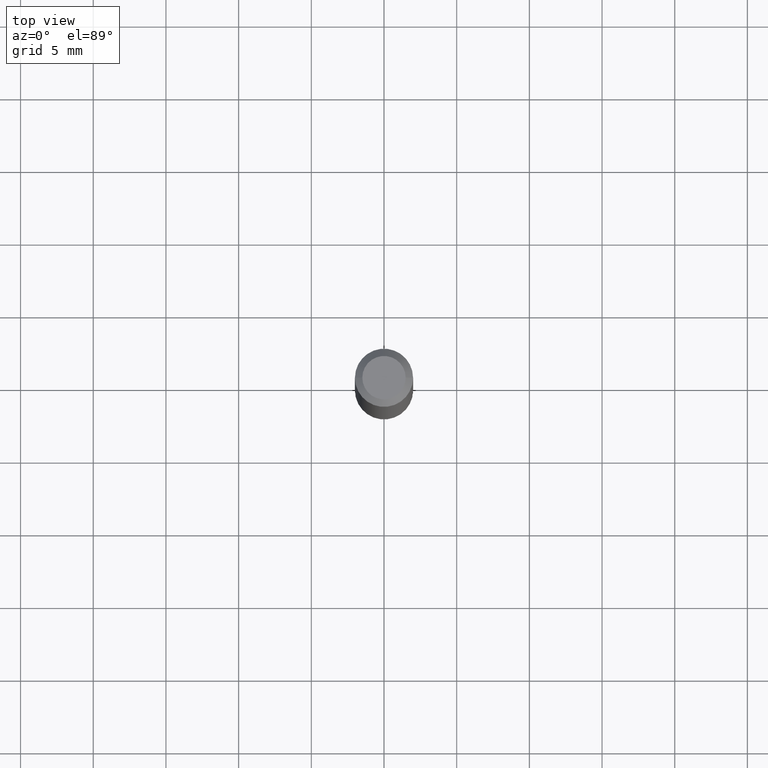
[diagram: clean part render]
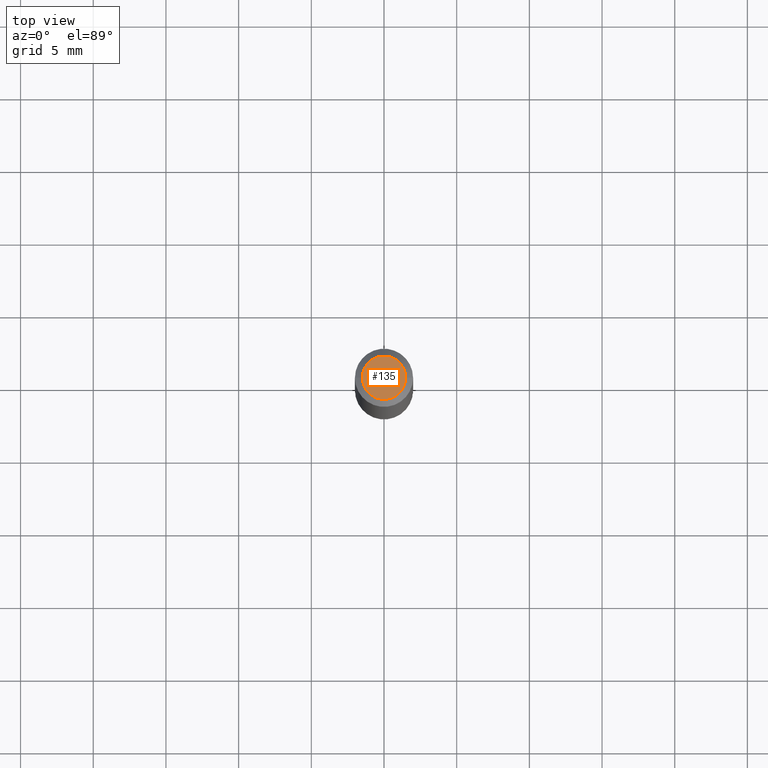
[diagram: same view with one face highlighted and labeled with its STEP entity id]
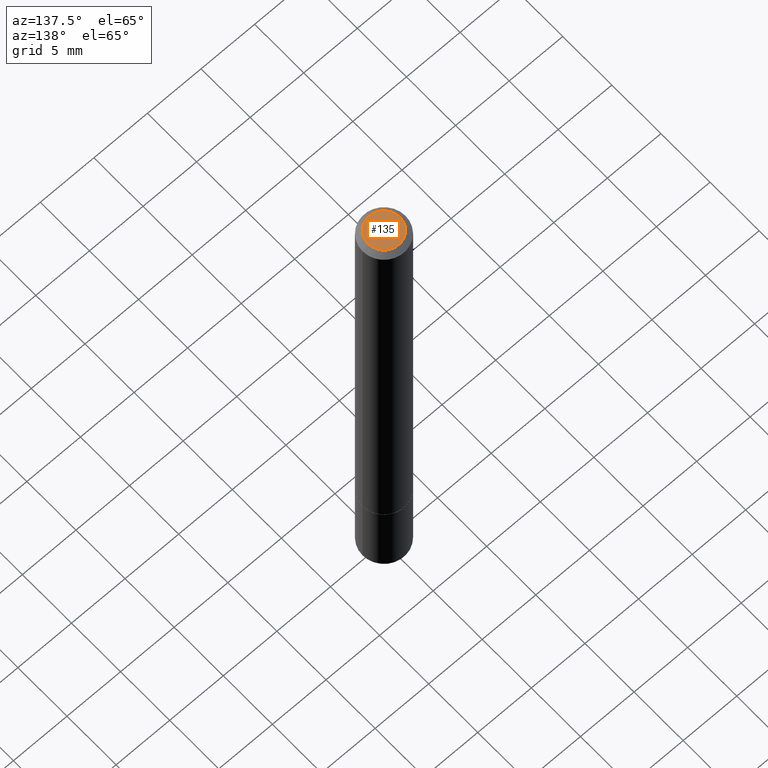
[diagram: same view with one face highlighted and labeled with its STEP entity id]
A machine part, top view. The second image highlights one B-rep face of the part: STEP entity #135.
A second angle (auxiliary view) of the same face is appended — the face is thin or edge-on in the first view.
In plain terms, the highlighted planar face has unit normal (0, -0, -1).
Its self-contained STEP definition (entity closure, byte-faithful):
#20 = CIRCLE ( 'NONE', #346, 0.05874999999999985095 ) ;
#21 = DIRECTION ( 'NONE',  ( -2.445468806185136597E-29, 3.491481338843145583E-15, 1.000000000000000000 ) ) ;
#23 = DIRECTION ( 'NONE',  ( -1.000000000000000000, 6.982962677686265922E-15, -4.876176775795935793E-29 ) ) ;
#36 = CIRCLE ( 'NONE', #81, 0.05874999999999985095 ) ;
#45 = ORIENTED_EDGE ( 'NONE', *, *, #85, .T. ) ;
#48 = ORIENTED_EDGE ( 'NONE', *, *, #328, .T. ) ;
#50 = DIRECTION ( 'NONE',  ( 2.438088387897960049E-29, -3.491481338843145188E-15, -1.000000000000000000 ) ) ;
#81 = AXIS2_PLACEMENT_3D ( 'NONE', #126, #274, #120 ) ;
#85 = EDGE_CURVE ( 'NONE', #320, #188, #20, .T. ) ;
#107 = CARTESIAN_POINT ( 'NONE',  ( 0.000000000000000000, 0.000000000000000000, 0.000000000000000000 ) ) ;
#120 = DIRECTION ( 'NONE',  ( 1.000000000000000000, -6.982962677686266711E-15, 4.876176775795935793E-29 ) ) ;
#126 = CARTESIAN_POINT ( 'NONE',  ( 0.000000000000000000, 0.000000000000000000, 0.000000000000000000 ) ) ;
#135 = ADVANCED_FACE ( 'NONE', ( #193 ), #304, .F. ) ;
#181 = CARTESIAN_POINT ( 'NONE',  ( -0.05874999999999985095, 4.451638707024981026E-16, -2.990994270918719090E-30 ) ) ;
#188 = VERTEX_POINT ( 'NONE', #195 ) ;
#193 = FACE_OUTER_BOUND ( 'NONE', #230, .T. ) ;
#195 = CARTESIAN_POINT ( 'NONE',  ( 0.05874999999999985095, -5.065740507352231227E-16, 3.205406768517976639E-30 ) ) ;
#230 = EDGE_LOOP ( 'NONE', ( #45, #48 ) ) ;
#274 = DIRECTION ( 'NONE',  ( -2.445468806185136597E-29, 3.491481338843145583E-15, 1.000000000000000000 ) ) ;
#304 = PLANE ( 'NONE',  #331 ) ;
#310 = DIRECTION ( 'NONE',  ( 1.000000000000000000, -6.982962677686266711E-15, 4.876176775795935793E-29 ) ) ;
#320 = VERTEX_POINT ( 'NONE', #181 ) ;
#328 = EDGE_CURVE ( 'NONE', #188, #320, #36, .T. ) ;
#329 = CARTESIAN_POINT ( 'NONE',  ( 4.102490573140670944E-16, 0.05874999999999985095, -2.051245286570342868E-16 ) ) ;
#331 = AXIS2_PLACEMENT_3D ( 'NONE', #329, #50, #23 ) ;
#346 = AXIS2_PLACEMENT_3D ( 'NONE', #107, #21, #310 ) ;